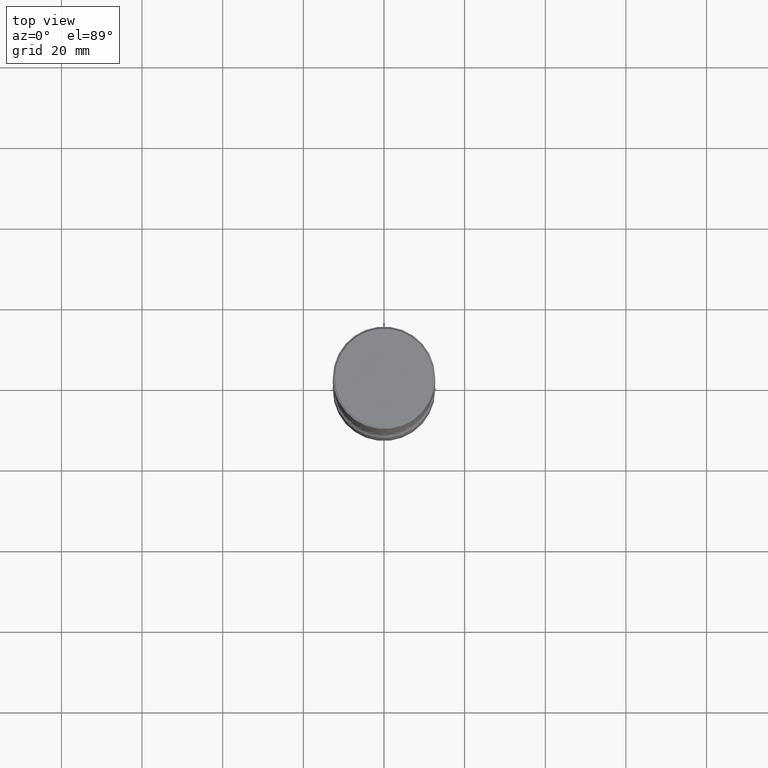
[diagram: clean part render]
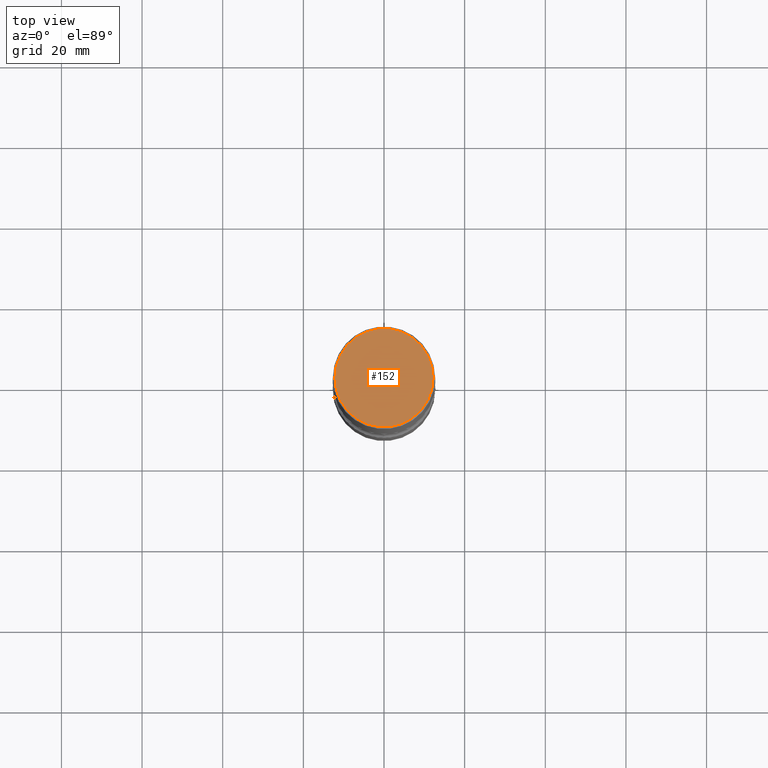
[diagram: same view with one face highlighted and labeled with its STEP entity id]
A machine part, top view. The second image highlights one B-rep face of the part: STEP entity #152.
In plain terms, the highlighted planar face has unit normal (0, -0, -1).
Its self-contained STEP definition (entity closure, byte-faithful):
#5 = DIRECTION ( 'NONE',  ( 2.438088387897960049E-29, -3.491481338843145188E-15, -1.000000000000000000 ) ) ;
#45 = CARTESIAN_POINT ( 'NONE',  ( 0.4799999999999998157, -3.396558832296481310E-15, 1.707404996042524007E-17 ) ) ;
#68 = VERTEX_POINT ( 'NONE', #45 ) ;
#83 = PLANE ( 'NONE',  #492 ) ;
#146 = ORIENTED_EDGE ( 'NONE', *, *, #308, .T. ) ;
#152 = ADVANCED_FACE ( 'NONE', ( #471 ), #83, .F. ) ;
#156 = CIRCLE ( 'NONE', #473, 0.4799999999999998157 ) ;
#177 = DIRECTION ( 'NONE',  ( -1.000000000000000000, 6.982962677686265922E-15, -4.876176775795935793E-29 ) ) ;
#194 = DIRECTION ( 'NONE',  ( -2.445468806185136597E-29, 3.491481338843145583E-15, 1.000000000000000000 ) ) ;
#197 = DIRECTION ( 'NONE',  ( -2.445468806185136597E-29, 3.491481338843145583E-15, 1.000000000000000000 ) ) ;
#228 = CIRCLE ( 'NONE', #554, 0.4799999999999998157 ) ;
#238 = EDGE_LOOP ( 'NONE', ( #146, #431 ) ) ;
#278 = DIRECTION ( 'NONE',  ( 1.000000000000000000, -6.982962677686266711E-15, 4.876431871984415397E-29 ) ) ;
#294 = EDGE_CURVE ( 'NONE', #68, #322, #156, .T. ) ;
#308 = EDGE_CURVE ( 'NONE', #322, #68, #228, .T. ) ;
#322 = VERTEX_POINT ( 'NONE', #546 ) ;
#327 = DIRECTION ( 'NONE',  ( 1.000000000000000000, -6.982962677686266711E-15, 4.876431871984415397E-29 ) ) ;
#334 = CARTESIAN_POINT ( 'NONE',  ( -4.175405657340879278E-46, 5.961372681521788801E-32, 1.707404996040164512E-17 ) ) ;
#431 = ORIENTED_EDGE ( 'NONE', *, *, #294, .T. ) ;
#433 = CARTESIAN_POINT ( 'NONE',  ( 3.351822085289406364E-15, 0.4799999999999998157, -1.667374017664508443E-15 ) ) ;
#471 = FACE_OUTER_BOUND ( 'NONE', #238, .T. ) ;
#473 = AXIS2_PLACEMENT_3D ( 'NONE', #334, #197, #327 ) ;
#492 = AXIS2_PLACEMENT_3D ( 'NONE', #433, #5, #177 ) ;
#537 = CARTESIAN_POINT ( 'NONE',  ( -4.175405657340879278E-46, 5.961372681521788801E-32, 1.707404996040164512E-17 ) ) ;
#546 = CARTESIAN_POINT ( 'NONE',  ( -0.4799999999999998157, 3.386736898677838408E-15, 1.707404996037808406E-17 ) ) ;
#554 = AXIS2_PLACEMENT_3D ( 'NONE', #537, #194, #278 ) ;